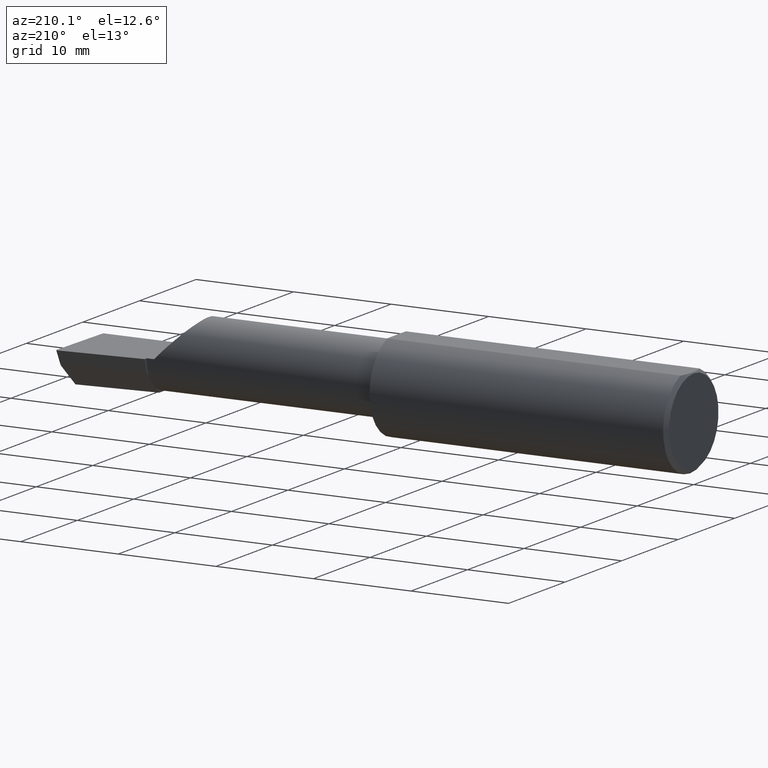
[diagram: clean part render]
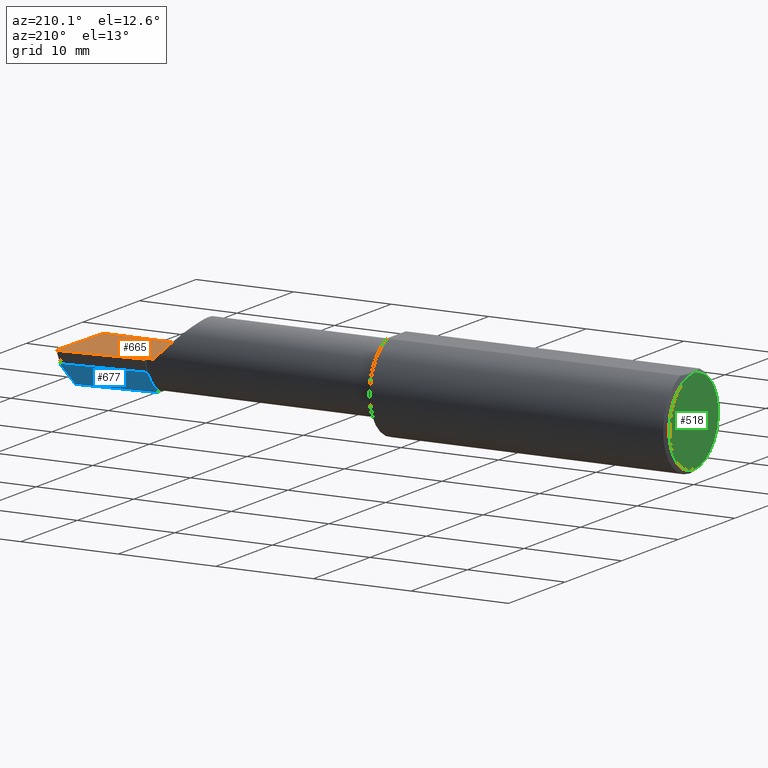
[diagram: same view with three faces highlighted in distinct colors, each labeled with its STEP entity id]
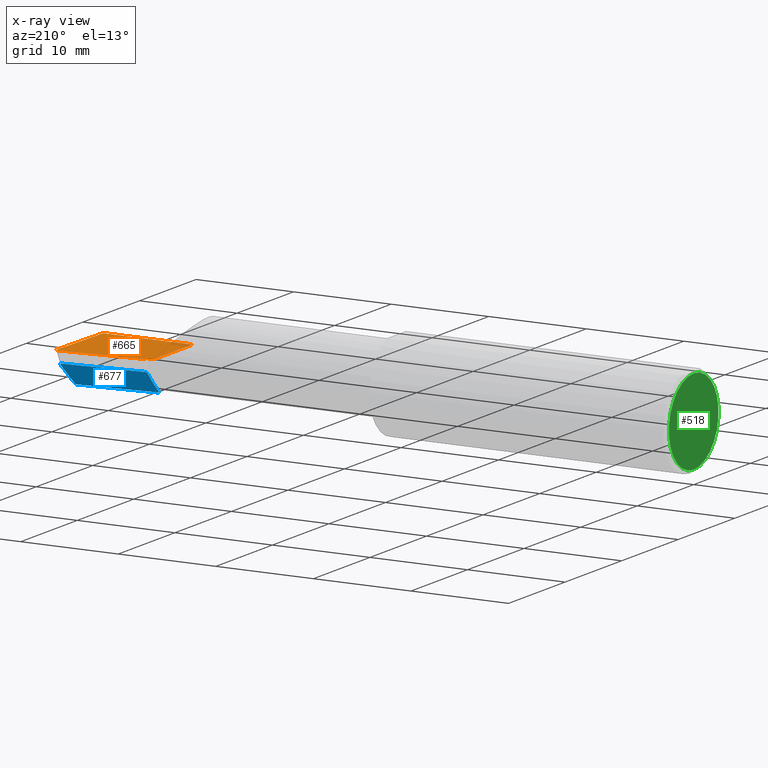
[diagram: x-ray of the same camera — body ghosted, the three highlighted faces saturated]
A machine part, auxiliary view with three faces highlighted in distinct colors.
The next image is the same camera in x-ray (body ghosted, the three faces saturated) — at least one of them is partly hidden behind the body in this view.
Their STEP definitions:

[orange] entity #665 — the highlighted planar face has unit normal (-0, 0, -1).
#9 = VECTOR ( 'NONE', #337, 39.37007874015748143 ) ;
#11 = EDGE_CURVE ( 'NONE', #511, #183, #655, .T. ) ;
#21 = EDGE_CURVE ( 'NONE', #98, #345, #391, .T. ) ;
#37 = DIRECTION ( 'NONE',  ( 1.000000000000000000, 6.829619984160658046E-18, 0.000000000000000000 ) ) ;
#39 = LINE ( 'NONE', #264, #446 ) ;
#40 = ORIENTED_EDGE ( 'NONE', *, *, #563, .F. ) ;
#54 = CARTESIAN_POINT ( 'NONE',  ( 2.493310817358646236, 0.1299961668063693565, 6.829023555897993829E-17 ) ) ;
#72 = ORIENTED_EDGE ( 'NONE', *, *, #21, .T. ) ;
#75 = CARTESIAN_POINT ( 'NONE',  ( 2.129999999999999893, 0.08264999999999983471, 1.065442715258197396E-16 ) ) ;
#96 = CARTESIAN_POINT ( 'NONE',  ( 2.492906680581862489, 0.1299669910246664395, 6.902945873237397134E-17 ) ) ;
#97 = ORIENTED_EDGE ( 'NONE', *, *, #293, .F. ) ;
#98 = VERTEX_POINT ( 'NONE', #674 ) ;
#128 = CARTESIAN_POINT ( 'NONE',  ( 2.160000000000000142, 0.08264999999999997349, 3.267291166268305196E-16 ) ) ;
#129 = EDGE_CURVE ( 'NONE', #183, #154, #566, .T. ) ;
#141 = CARTESIAN_POINT ( 'NONE',  ( 2.491672876940991710, -0.1873499999999999888, 6.915950918908297591E-17 ) ) ;
#154 = VERTEX_POINT ( 'NONE', #128 ) ;
#164 = CARTESIAN_POINT ( 'NONE',  ( 2.493512870449284158, 0.1299961668063693288, 3.414809992080329023E-17 ) ) ;
#166 = EDGE_CURVE ( 'NONE', #614, #345, #255, .T. ) ;
#176 = LINE ( 'NONE', #228, #240 ) ;
#183 = VERTEX_POINT ( 'NONE', #75 ) ;
#188 = ORIENTED_EDGE ( 'NONE', *, *, #587, .T. ) ;
#207 = PLANE ( 'NONE',  #573 ) ;
#228 = CARTESIAN_POINT ( 'NONE',  ( 2.490039159128059953, -0.2497391662021650194, 6.932588350567417155E-17 ) ) ;
#232 = ORIENTED_EDGE ( 'NONE', *, *, #392, .T. ) ;
#234 = CARTESIAN_POINT ( 'NONE',  ( 2.499806390372749210, 0.1232563466314183093, 6.833120963331977295E-17 ) ) ;
#236 = CARTESIAN_POINT ( 'NONE',  ( 2.129999999999999893, -0.2500000000000000555, 1.065442715258197396E-16 ) ) ;
#240 = VECTOR ( 'NONE', #435, 39.37007874015748854 ) ;
#248 = CARTESIAN_POINT ( 'NONE',  ( 2.129999999999999893, -0.1873499999999999888, 1.065442715258197396E-16 ) ) ;
#255 = LINE ( 'NONE', #347, #284 ) ;
#256 =( BOUNDED_CURVE ( )  B_SPLINE_CURVE ( 3, ( #499, #444, #659, #663 ),
 .UNSPECIFIED., .F., .T. ) 
 B_SPLINE_CURVE_WITH_KNOTS ( ( 4, 4 ),
 ( 1.953092279228226147, 3.511516179717395492 ),
 .UNSPECIFIED. ) 
 CURVE ( )  GEOMETRIC_REPRESENTATION_ITEM ( )  RATIONAL_B_SPLINE_CURVE ( ( 1.000000000000000000, 0.8076450242550619052, 0.8076450242550619052, 1.000000000000000000 ) ) 
 REPRESENTATION_ITEM ( '' )  );
#258 = DIRECTION ( 'NONE',  ( -1.000000000000000000, -0.000000000000000000, -0.000000000000000000 ) ) ;
#264 = CARTESIAN_POINT ( 'NONE',  ( 3.377502344341257155E-32, -0.1873499999999999610, 3.267291166268304703E-16 ) ) ;
#277 = CARTESIAN_POINT ( 'NONE',  ( 2.493108609909192808, 0.1299864346073983934, 6.831113838336315012E-17 ) ) ;
#284 = VECTOR ( 'NONE', #557, 39.37007874015748143 ) ;
#291 = ORIENTED_EDGE ( 'NONE', *, *, #166, .F. ) ;
#292 = DIRECTION ( 'NONE',  ( -6.829619984160658816E-18, 1.000000000000000000, 7.059994452165177242E-34 ) ) ;
#293 = EDGE_CURVE ( 'NONE', #651, #511, #39, .T. ) ;
#332 = EDGE_LOOP ( 'NONE', ( #232, #188, #72, #291, #40, #406, #562, #97 ) ) ;
#337 = DIRECTION ( 'NONE',  ( -0.000000000000000000, 1.000000000000000000, -0.000000000000000000 ) ) ;
#345 = VERTEX_POINT ( 'NONE', #96 ) ;
#347 = CARTESIAN_POINT ( 'NONE',  ( 0.5470260790800297590, -0.05740000000000000657, 2.701812985571358811E-16 ) ) ;
#351 = CARTESIAN_POINT ( 'NONE',  ( -9.564882787816658464E-19, 0.08264999999999991798, 3.267291166268304703E-16 ) ) ;
#353 = CARTESIAN_POINT ( 'NONE',  ( 2.159999999999999698, 0.09791172361284175563, 3.244069492476312449E-16 ) ) ;
#391 =( BOUNDED_CURVE ( )  B_SPLINE_CURVE ( 3, ( #164, #54, #277, #439 ),
 .UNSPECIFIED., .F., .F. ) 
 B_SPLINE_CURVE_WITH_KNOTS ( ( 4, 4 ),
 ( 3.511516179717395492, 3.604018710825996230 ),
 .UNSPECIFIED. ) 
 CURVE ( )  GEOMETRIC_REPRESENTATION_ITEM ( )  RATIONAL_B_SPLINE_CURVE ( ( 1.000000000000000000, 0.9992870672494007511, 0.9992870672494007511, 1.000000000000000000 ) ) 
 REPRESENTATION_ITEM ( '' )  );
#392 = EDGE_CURVE ( 'NONE', #651, #574, #176, .T. ) ;
#406 = ORIENTED_EDGE ( 'NONE', *, *, #129, .F. ) ;
#422 = FACE_OUTER_BOUND ( 'NONE', #332, .T. ) ;
#435 = DIRECTION ( 'NONE',  ( 0.02617694830779391732, 0.9996573249755593693, -2.665804247635807698E-18 ) ) ;
#439 = CARTESIAN_POINT ( 'NONE',  ( 2.492906680581862489, 0.1299669910246664395, 6.902945873237397134E-17 ) ) ;
#444 = CARTESIAN_POINT ( 'NONE',  ( 2.499910038027473025, 0.1272144908750949543, 6.760805322059820356E-17 ) ) ;
#446 = VECTOR ( 'NONE', #258, 39.37007874015748143 ) ;
#499 = CARTESIAN_POINT ( 'NONE',  ( 2.499806390372749210, 0.1232563466314183093, 6.833120963331977295E-17 ) ) ;
#511 = VERTEX_POINT ( 'NONE', #248 ) ;
#515 = LINE ( 'NONE', #620, #521 ) ;
#521 = VECTOR ( 'NONE', #292, 39.37007874015748143 ) ;
#557 = DIRECTION ( 'NONE',  ( 0.9953961983671787417, 0.09584575252022450864, -1.028972571603813720E-16 ) ) ;
#562 = ORIENTED_EDGE ( 'NONE', *, *, #11, .F. ) ;
#563 = EDGE_CURVE ( 'NONE', #154, #614, #515, .T. ) ;
#564 = VECTOR ( 'NONE', #37, 39.37007874015748143 ) ;
#566 = LINE ( 'NONE', #351, #564 ) ;
#573 = AXIS2_PLACEMENT_3D ( 'NONE', #634, #687, #678 ) ;
#574 = VERTEX_POINT ( 'NONE', #234 ) ;
#587 = EDGE_CURVE ( 'NONE', #574, #98, #256, .T. ) ;
#614 = VERTEX_POINT ( 'NONE', #353 ) ;
#620 = CARTESIAN_POINT ( 'NONE',  ( 2.159999999999999698, -0.2500000000000000555, 1.034430765243970680E-16 ) ) ;
#634 = CARTESIAN_POINT ( 'NONE',  ( 2.500000000000000000, -0.2500000000000000555, 6.829619984160658046E-17 ) ) ;
#651 = VERTEX_POINT ( 'NONE', #141 ) ;
#655 = LINE ( 'NONE', #236, #9 ) ;
#659 = CARTESIAN_POINT ( 'NONE',  ( 2.497312560284794092, 0.1299961668063691345, 6.787656272032836589E-17 ) ) ;
#663 = CARTESIAN_POINT ( 'NONE',  ( 2.493512870449284158, 0.1299961668063693288, 3.414809992080329023E-17 ) ) ;
#665 = ADVANCED_FACE ( 'NONE', ( #422 ), #207, .F. ) ;
#674 = CARTESIAN_POINT ( 'NONE',  ( 2.493512870449284158, 0.1299961668063693288, 3.414809992080329023E-17 ) ) ;
#678 = DIRECTION ( 'NONE',  ( -1.000000000000000000, 0.000000000000000000, 1.033731667140896077E-16 ) ) ;
#687 = DIRECTION ( 'NONE',  ( -1.033731667140896077E-16, 0.000000000000000000, -1.000000000000000000 ) ) ;

[blue] entity #677 — the highlighted planar face has unit normal (-0.0689, 0.716, -0.6947).
#18 = VERTEX_POINT ( 'NONE', #599 ) ;
#29 = CARTESIAN_POINT ( 'NONE',  ( 2.486947077001955719, 0.1139931928746992507, -0.05004403198038590711 ) ) ;
#30 = CARTESIAN_POINT ( 'NONE',  ( 2.492671897414695525, 0.1095727882432246530, -0.05516861643763542461 ) ) ;
#47 = LINE ( 'NONE', #95, #275 ) ;
#51 = EDGE_LOOP ( 'NONE', ( #373, #447, #629, #468, #489, #244, #80, #126 ) ) ;
#65 = VERTEX_POINT ( 'NONE', #361 ) ;
#80 = ORIENTED_EDGE ( 'NONE', *, *, #162, .F. ) ;
#82 = LINE ( 'NONE', #354, #100 ) ;
#86 = CARTESIAN_POINT ( 'NONE',  ( 2.486346664144836183, 0.1139780975458775658, -0.04999999999999999584 ) ) ;
#87 = VECTOR ( 'NONE', #372, 39.37007874015748143 ) ;
#89 = VECTOR ( 'NONE', #692, 39.37007874015748854 ) ;
#90 = EDGE_CURVE ( 'NONE', #421, #633, #82, .T. ) ;
#95 = CARTESIAN_POINT ( 'NONE',  ( 2.159999999999999698, 0.06382066673065311946, -0.06931012851386070261 ) ) ;
#99 = VECTOR ( 'NONE', #450, 39.37007874015748143 ) ;
#100 = VECTOR ( 'NONE', #411, 39.37007874015748854 ) ;
#104 = VERTEX_POINT ( 'NONE', #86 ) ;
#120 = AXIS2_PLACEMENT_3D ( 'NONE', #312, #316, #267 ) ;
#126 = ORIENTED_EDGE ( 'NONE', *, *, #273, .F. ) ;
#162 = EDGE_CURVE ( 'NONE', #65, #555, #516, .T. ) ;
#189 = CARTESIAN_POINT ( 'NONE',  ( 2.491786964307025176, 0.1037103972642544197, -0.06112352112763063533 ) ) ;
#201 = CARTESIAN_POINT ( 'NONE',  ( 2.486548593472166058, 0.1139975411286092838, -0.05000000000000005829 ) ) ;
#203 = CARTESIAN_POINT ( 'NONE',  ( 2.159999999999999698, 0.06382066673065311946, -0.06931012851386070261 ) ) ;
#205 = VECTOR ( 'NONE', #365, 39.37007874015748143 ) ;
#220 = EDGE_CURVE ( 'NONE', #104, #419, #686, .T. ) ;
#226 = CARTESIAN_POINT ( 'NONE',  ( 2.491786964307025176, 0.1037103972642544197, -0.06112352112763063533 ) ) ;
#231 = CARTESIAN_POINT ( 'NONE',  ( 2.480058035321255350, 0.02601009779168076547, -0.1400500000000000633 ) ) ;
#237 = EDGE_CURVE ( 'NONE', #104, #18, #679, .T. ) ;
#244 = ORIENTED_EDGE ( 'NONE', *, *, #691, .F. ) ;
#260 = CARTESIAN_POINT ( 'NONE',  ( 2.486346664144836183, 0.1139780975458775658, -0.04999999999999999584 ) ) ;
#267 = DIRECTION ( 'NONE',  ( 0.000000000000000000, 0.6963153109074925462, 0.7177360153954948085 ) ) ;
#273 = EDGE_CURVE ( 'NONE', #18, #65, #363, .T. ) ;
#275 = VECTOR ( 'NONE', #371, 39.37007874015748143 ) ;
#294 = CARTESIAN_POINT ( 'NONE',  ( 2.159999999999999698, 0.06382066673065311946, -0.06931012851386070261 ) ) ;
#304 = LINE ( 'NONE', #682, #205 ) ;
#309 = CARTESIAN_POINT ( 'NONE',  ( 2.486748873877666188, 0.1140025764947606296, -0.05001468779820771038 ) ) ;
#312 = CARTESIAN_POINT ( 'NONE',  ( 2.511419111345317923, 0.1163922996227946260, -0.04999999999999999584 ) ) ;
#314 = CARTESIAN_POINT ( 'NONE',  ( 2.486947077001955719, 0.1139931928746992507, -0.05004403198038590711 ) ) ;
#316 = DIRECTION ( 'NONE',  ( -0.06894566448119621160, 0.7160281025913034503, -0.6946583704589934793 ) ) ;
#331 = CARTESIAN_POINT ( 'NONE',  ( 2.486947077001955719, 0.1139931928746992507, -0.05004403198038590711 ) ) ;
#354 = CARTESIAN_POINT ( 'NONE',  ( 2.491859106488688358, 0.02714641170210413054, -0.1400500000000000633 ) ) ;
#358 = CARTESIAN_POINT ( 'NONE',  ( 2.490674366668010453, 0.1138167301160498690, -0.05059586115756910946 ) ) ;
#361 = CARTESIAN_POINT ( 'NONE',  ( 2.159999999999999698, 0.06495571228477929615, -0.06814016562413310885 ) ) ;
#363 = LINE ( 'NONE', #203, #87 ) ;
#365 = DIRECTION ( 'NONE',  ( 0.1053106618240640252, 0.6976485211320200275, 0.7086580314005359593 ) ) ;
#371 = DIRECTION ( 'NONE',  ( 4.755568962650853567E-18, -0.6963153109074925462, -0.7177360153954948085 ) ) ;
#372 = DIRECTION ( 'NONE',  ( 4.755568962650853567E-18, -0.6963153109074925462, -0.7177360153954948085 ) ) ;
#373 = ORIENTED_EDGE ( 'NONE', *, *, #237, .F. ) ;
#411 = DIRECTION ( 'NONE',  ( -0.9953961983671800740, -0.09584575252021031166, -1.093478026937437971E-17 ) ) ;
#419 = VERTEX_POINT ( 'NONE', #331 ) ;
#421 = VERTEX_POINT ( 'NONE', #231 ) ;
#447 = ORIENTED_EDGE ( 'NONE', *, *, #220, .T. ) ;
#450 = DIRECTION ( 'NONE',  ( 4.755568962650853567E-18, -0.6963153109074925462, -0.7177360153954948085 ) ) ;
#453 = CARTESIAN_POINT ( 'NONE',  ( 2.159999999999999698, 0.01441505128072317204, -0.1202356058309978493 ) ) ;
#455 = VERTEX_POINT ( 'NONE', #226 ) ;
#468 = ORIENTED_EDGE ( 'NONE', *, *, #641, .F. ) ;
#475 = CARTESIAN_POINT ( 'NONE',  ( 2.511419111345317923, 0.1163922996227946260, -0.04999999999999999584 ) ) ;
#489 = ORIENTED_EDGE ( 'NONE', *, *, #90, .T. ) ;
#514 = EDGE_CURVE ( 'NONE', #419, #455, #675, .T. ) ;
#516 = LINE ( 'NONE', #294, #99 ) ;
#527 = FACE_OUTER_BOUND ( 'NONE', #51, .T. ) ;
#531 = PLANE ( 'NONE',  #120 ) ;
#555 = VERTEX_POINT ( 'NONE', #453 ) ;
#565 = CARTESIAN_POINT ( 'NONE',  ( 2.159999999999999698, -0.004807985797372701584, -0.1400500000000000633 ) ) ;
#599 = CARTESIAN_POINT ( 'NONE',  ( 2.159999999999999698, 0.08255448787293401258, -0.04999999999999999584 ) ) ;
#629 = ORIENTED_EDGE ( 'NONE', *, *, #514, .T. ) ;
#633 = VERTEX_POINT ( 'NONE', #565 ) ;
#641 = EDGE_CURVE ( 'NONE', #421, #455, #304, .T. ) ;
#675 =( BOUNDED_CURVE ( )  B_SPLINE_CURVE ( 3, ( #29, #358, #30, #189 ),
 .UNSPECIFIED., .F., .F. ) 
 B_SPLINE_CURVE_WITH_KNOTS ( ( 4, 4 ),
 ( 3.156599629463172629, 4.715023529952374837 ),
 .UNSPECIFIED. ) 
 CURVE ( )  GEOMETRIC_REPRESENTATION_ITEM ( )  RATIONAL_B_SPLINE_CURVE ( ( 1.000000000000000000, 0.8076450242550540226, 0.8076450242550540226, 1.000000000000000000 ) ) 
 REPRESENTATION_ITEM ( '' )  );
#677 = ADVANCED_FACE ( 'NONE', ( #527 ), #531, .T. ) ;
#679 = LINE ( 'NONE', #475, #89 ) ;
#682 = CARTESIAN_POINT ( 'NONE',  ( 2.493766568580444432, 0.1168246249203733073, -0.04780233936830600300 ) ) ;
#686 =( BOUNDED_CURVE ( )  B_SPLINE_CURVE ( 3, ( #260, #201, #309, #314 ),
 .UNSPECIFIED., .F., .T. ) 
 B_SPLINE_CURVE_WITH_KNOTS ( ( 4, 4 ),
 ( 3.064097098354647386, 3.156599629463172629 ),
 .UNSPECIFIED. ) 
 CURVE ( )  GEOMETRIC_REPRESENTATION_ITEM ( )  RATIONAL_B_SPLINE_CURVE ( ( 1.000000000000000000, 0.9992870672494019724, 0.9992870672494019724, 1.000000000000000000 ) ) 
 REPRESENTATION_ITEM ( '' )  );
#691 = EDGE_CURVE ( 'NONE', #555, #633, #47, .T. ) ;
#692 = DIRECTION ( 'NONE',  ( -0.9953961983671800740, -0.09584575252021031166, 0.000000000000000000 ) ) ;

[green] entity #518 — the highlighted planar face has unit normal (1, 0, 0).
#16 = CARTESIAN_POINT ( 'NONE',  ( 0.000000000000000000, 0.000000000000000000, -0.1723499999999996424 ) ) ;
#50 = DIRECTION ( 'NONE',  ( -1.000000000000000000, -0.000000000000000000, -0.000000000000000000 ) ) ;
#74 = DIRECTION ( 'NONE',  ( 0.000000000000000000, 0.000000000000000000, -1.000000000000000000 ) ) ;
#83 = CARTESIAN_POINT ( 'NONE',  ( 0.000000000000000000, 0.000000000000000000, 0.000000000000000000 ) ) ;
#139 = CARTESIAN_POINT ( 'NONE',  ( 0.000000000000000000, 0.000000000000000000, 0.000000000000000000 ) ) ;
#144 = AXIS2_PLACEMENT_3D ( 'NONE', #414, #50, #369 ) ;
#148 = VERTEX_POINT ( 'NONE', #306 ) ;
#155 = CIRCLE ( 'NONE', #144, 0.1723499999999996424 ) ;
#180 = AXIS2_PLACEMENT_3D ( 'NONE', #83, #512, #396 ) ;
#196 = DIRECTION ( 'NONE',  ( 1.000000000000000000, 0.000000000000000000, 0.000000000000000000 ) ) ;
#250 = FACE_OUTER_BOUND ( 'NONE', #287, .T. ) ;
#259 = ORIENTED_EDGE ( 'NONE', *, *, #488, .T. ) ;
#266 = EDGE_CURVE ( 'NONE', #148, #500, #155, .T. ) ;
#287 = EDGE_LOOP ( 'NONE', ( #259, #535 ) ) ;
#306 = CARTESIAN_POINT ( 'NONE',  ( 0.000000000000000000, 2.202527268266512578E-17, 0.1723499999999996424 ) ) ;
#369 = DIRECTION ( 'NONE',  ( 0.000000000000000000, 0.000000000000000000, 1.000000000000000000 ) ) ;
#396 = DIRECTION ( 'NONE',  ( 0.000000000000000000, 0.000000000000000000, 1.000000000000000000 ) ) ;
#414 = CARTESIAN_POINT ( 'NONE',  ( 0.000000000000000000, 0.000000000000000000, 0.000000000000000000 ) ) ;
#488 = EDGE_CURVE ( 'NONE', #500, #148, #552, .T. ) ;
#500 = VERTEX_POINT ( 'NONE', #16 ) ;
#512 = DIRECTION ( 'NONE',  ( -1.000000000000000000, -0.000000000000000000, -0.000000000000000000 ) ) ;
#517 = AXIS2_PLACEMENT_3D ( 'NONE', #139, #196, #74 ) ;
#518 = ADVANCED_FACE ( 'NONE', ( #250 ), #556, .F. ) ;
#535 = ORIENTED_EDGE ( 'NONE', *, *, #266, .T. ) ;
#552 = CIRCLE ( 'NONE', #180, 0.1723499999999996424 ) ;
#556 = PLANE ( 'NONE',  #517 ) ;